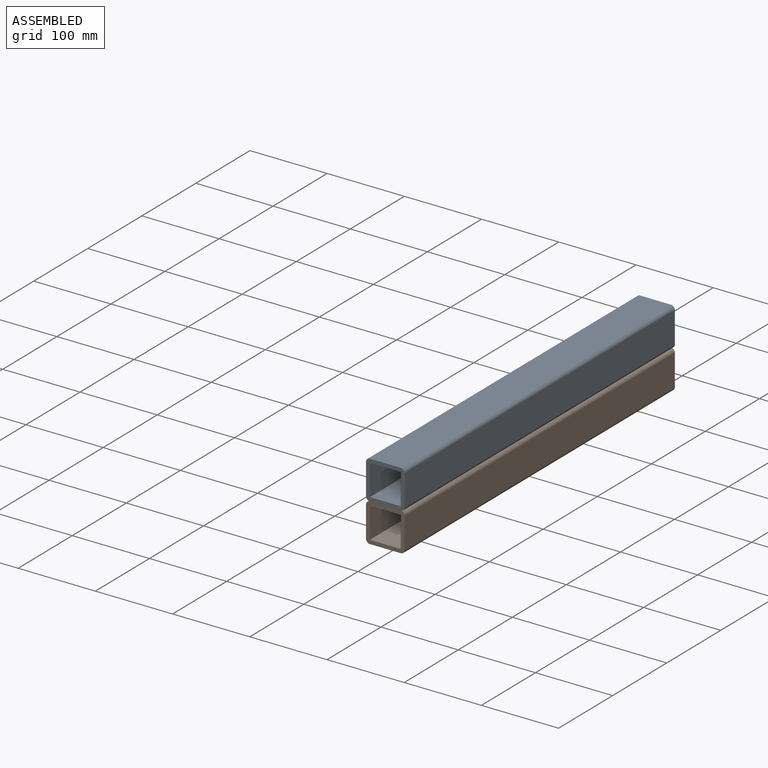
[diagram: assembled view]
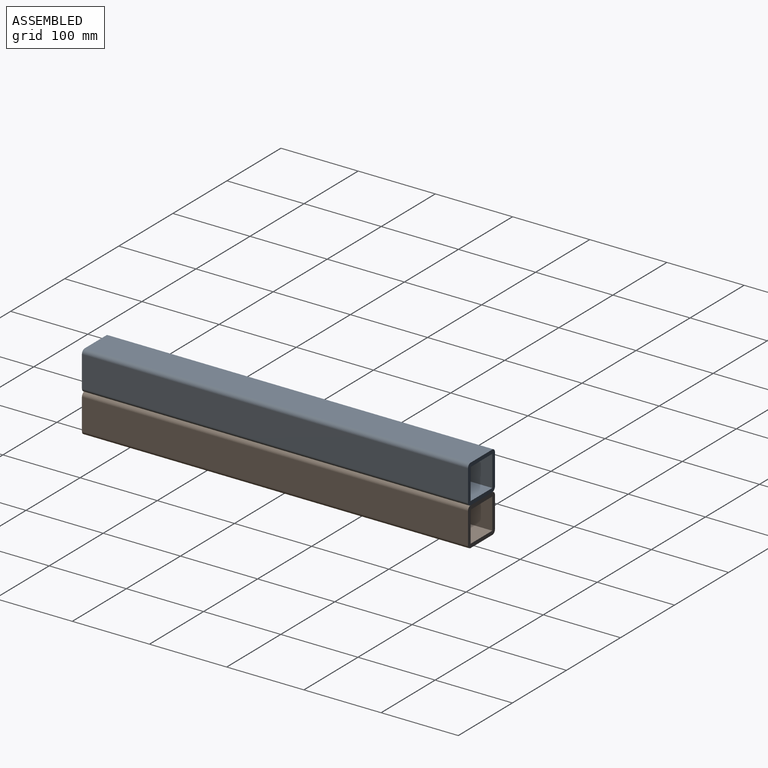
[diagram: assembled view, second angle]
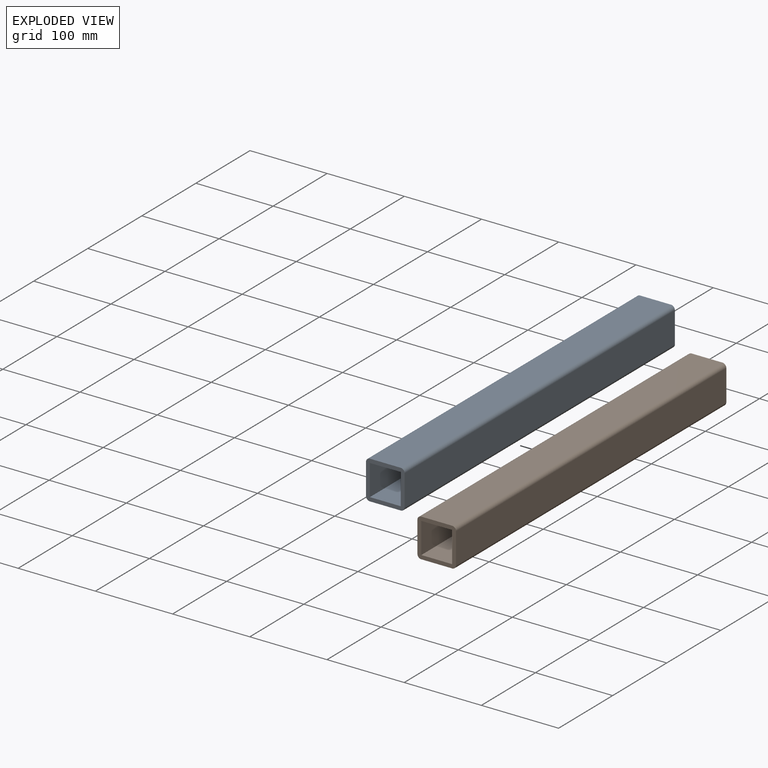
[diagram: exploded view]
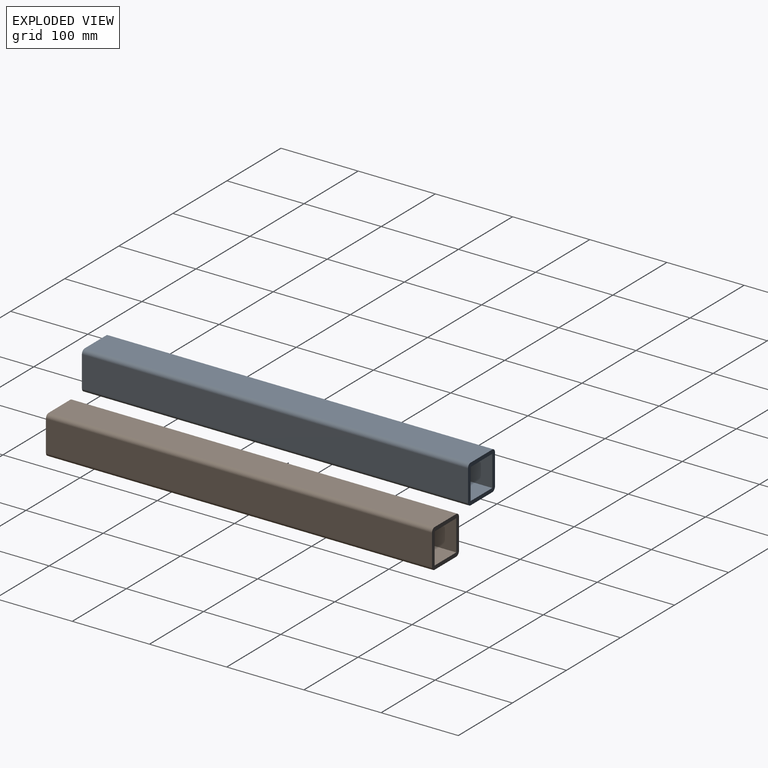
[diagram: exploded view, second angle]
ASSEMBLY  parts=2 mates=2
PART A: 14 faces, bbox 50x500x50 mm
  f0: plane 500x40mm, normal (1,0,0), area 20000mm2, adj f1,f11,f12,f13
  f1: cylinder r=5mm len=500mm, axis (0,1,0), area 3927mm2, adj f0,f2,f12,f13
  f2: plane 500x40mm, normal (0,0,1), area 20000mm2, adj f1,f3,f12,f13
  f3: cylinder r=5mm len=500mm, axis (0,1,0), area 3927mm2, adj f2,f4,f12,f13
  f4: plane 500x40mm, normal (-1,0,0), area 20000mm2, adj f3,f5,f12,f13
  f5: cylinder r=5mm len=500mm, axis (0,1,0), area 3927mm2, adj f4,f6,f12,f13
  f6: plane 500x40mm, normal (0,0,-1), area 20000mm2, adj f5,f11,f12,f13
  f7: plane 500x40mm, normal (0,0,1), area 20000mm2, adj f8,f10,f12,f13
  f8: plane 500x40mm, normal (1,0,0), area 20000mm2, adj f7,f9,f12,f13
  f9: plane 500x40mm, normal (0,0,-1), area 20000mm2, adj f8,f10,f12,f13
  f10: plane 500x40mm, normal (-1,0,0), area 20000mm2, adj f7,f9,f12,f13
  f11: cylinder r=5mm len=500mm, axis (0,1,0), area 3927mm2, adj f0,f6,f12,f13
  f12: plane 50x50mm, normal (0,-1,0), area 878.5mm2, adj f0,f1,f2,f3,f4,f5,f6,f7
  f13: plane 50x50mm, normal (0,1,0), area 878.5mm2, adj f0,f1,f2,f3,f4,f5,f6,f7
PART B: same geometry as A
PLACE A t=(0.36,0.21,20)mm
PLACE B t=(0.36,0.21,-30)mm
MATE parallel A.f4 <-> B.f4  axis (-1,0,0) through (-24.64,0.21,20)mm
MATE planar A.f6 <-> B.f2  axis (0,0,-1) through (0.36,0.21,-5)mm
